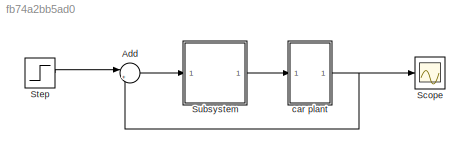
MODEL slx_fb74a2bb5ad0
KIND model
CONFIG AbsTol = auto
CONFIG EnableMultiTasking = off
CONFIG FixedStep = auto
CONFIG MaxStep = auto
CONFIG MinStep = auto
CONFIG RelTol = 1e-3
CONFIG SampleTimeConstraint = Unconstrained
CONFIG SolverName = VariableStepAuto
CONFIG StartTime = 0.0
CONFIG StopTime = 50
WORKSPACE source: mxarray member
WORKSPACE Kd = 346
WORKSPACE Ki = 76
WORKSPACE Kp = 1000
WORKSPACE N = 100000
WORKSPACE b = 50
WORKSPACE m = 1000
WORKSPACE u = 500
BLOCK [Sum] Add
  Inputs = |+-
  Ports = [2, 1]
BLOCK [Scope] Scope
  Floating = off
  NumInputPorts = 1
  Ports = [1]
  ScopeSpecificationString = Simulink.scopes.TimeScopeBlockCfg('CurrentConfiguration', extmgr.ConfigurationSet(extmgr.Configuration('Core','General UI',true),extmgr.Configuration('Core','Source UI',true),extmgr.Configuration('Sources','WiredSimulink',true),extmgr.Configuration('Visuals','Time Domain',true,'SerializedDisplays',{struct('MinYLimReal','-64.00804','MaxYLimReal','576.07238','YLabelReal','','MinYLimMag','0.00000','M...<+1370ch>
BLOCK [Step] Step
  After = u
  SampleTime = 0
  Time = 0
BLOCK [ModelReference] Subsystem
  ModelNameDialog = PID_controller
  ModelReferenceVersion = 1.8
  Ports = [1, 1]
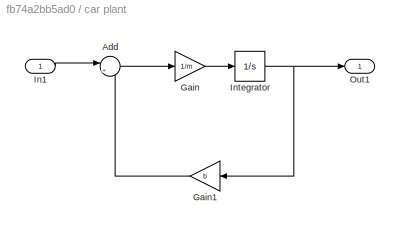
BLOCK [SubSystem] car plant
  Ports = [1, 1]
  RequestExecContextInheritance = off
BLOCK [Sum] car plant/Add
  Inputs = |+-
  Ports = [2, 1]
BLOCK [Gain] car plant/Gain
  Gain = 1/m
BLOCK [Gain] car plant/Gain1
  Gain = b
  NameLocation = top
BLOCK [Inport] car plant/In1
BLOCK [Integrator] car plant/Integrator
  Ports = [1, 1]
BLOCK [Outport] car plant/Out1
LINE Add:1 -> Subsystem:1
LINE Step:1 -> Add:1
LINE Subsystem:1 -> car plant:1
LINE car plant/Add:1 -> car plant/Gain:1
LINE car plant/Gain1:1 -> car plant/Add:2
LINE car plant/Gain:1 -> car plant/Integrator:1
LINE car plant/In1:1 -> car plant/Add:1
NET car plant/Integrator:1 -> car plant/Gain1:1, car plant/Out1:1
NET car plant:1 -> Add:2, Scope:1
note: NET lines group one-source signal fan-out (src -> all destinations, sorted); 1:1 wires keep LINE
